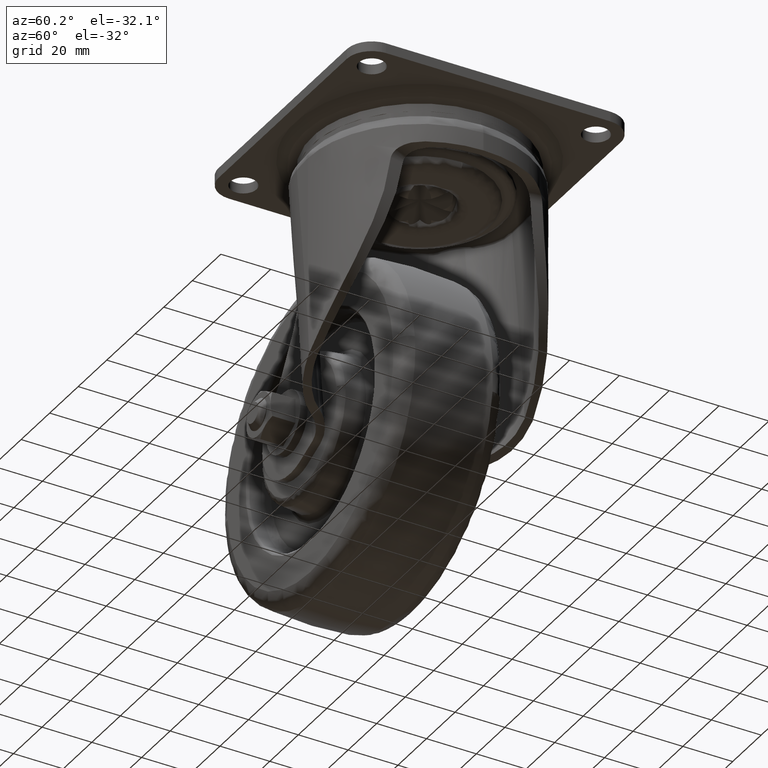
[diagram: clean part render]
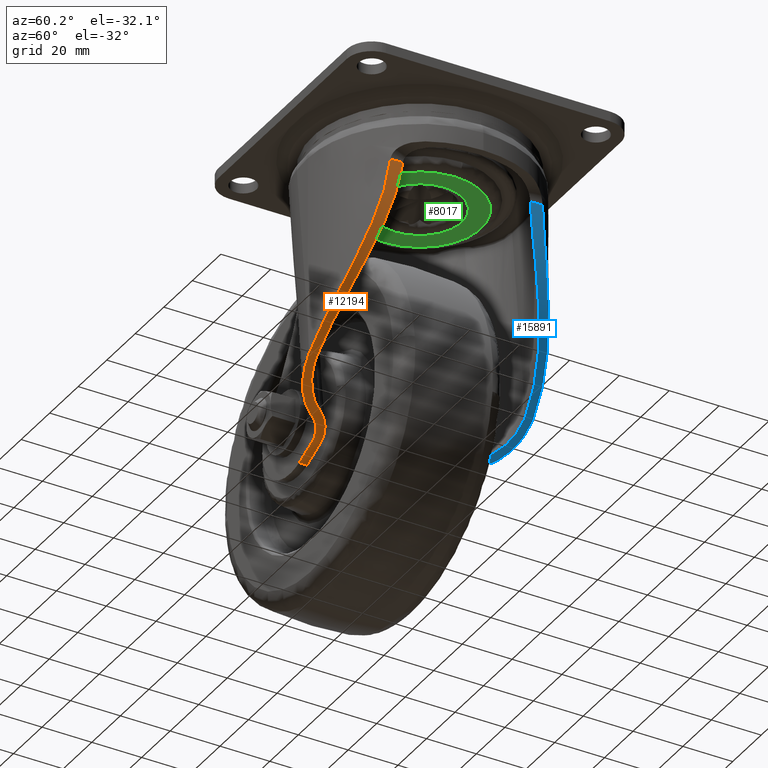
[diagram: same view with three faces highlighted in distinct colors, each labeled with its STEP entity id]
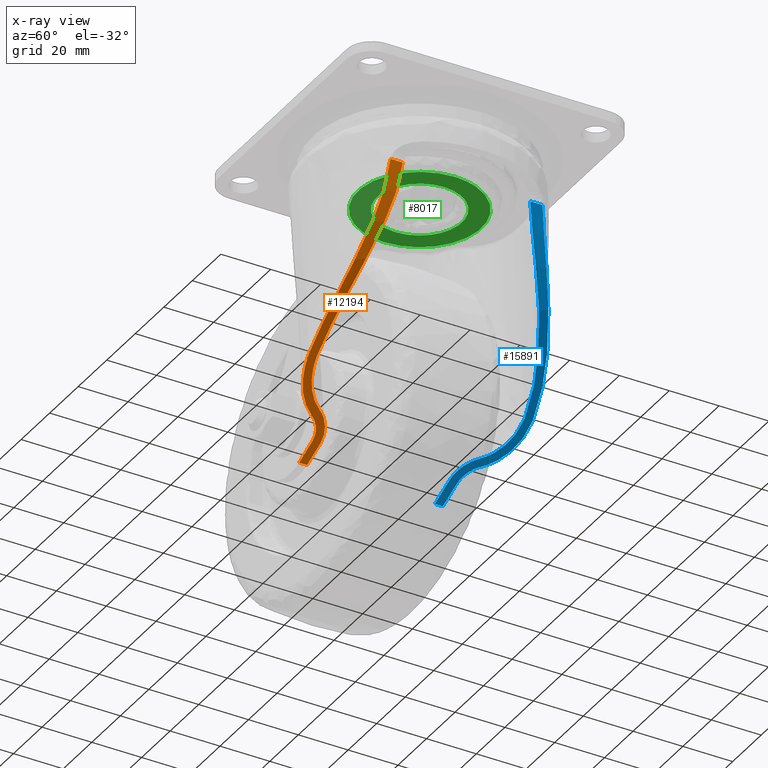
[diagram: x-ray of the same camera — body ghosted, the three highlighted faces saturated]
A machine part, auxiliary view with three faces highlighted in distinct colors.
The next image is the same camera in x-ray (body ghosted, the three faces saturated) — at least one of them is partly hidden behind the body in this view.
Their STEP definitions:

[orange] entity #12194 — the highlighted face is a freeform B-spline surface patch.
#11175=CARTESIAN_POINT('',(-13.958340382854940,-32.171004480450847,-109.168453778326590));
#11176=VERTEX_POINT('',#11175);
#11182=CARTESIAN_POINT('',(-24.742344826114749,-25.649999999999999,-115.044881371074000));
#11183=VERTEX_POINT('',#11182);
#11184=CARTESIAN_POINT('',(-24.742344826114749,-25.649999999999999,-115.044881371074000));
#11185=CARTESIAN_POINT('',(-24.190412240721589,-25.650000000000020,-114.786590730680300));
#11186=CARTESIAN_POINT('',(-23.646766445579999,-25.687769128571439,-114.526052733897900));
#11187=CARTESIAN_POINT('',(-22.575111066813680,-25.834718690428360,-114.000791604115610));
#11188=CARTESIAN_POINT('',(-22.047104710375500,-25.943914283693200,-113.736067767809300));
#11189=CARTESIAN_POINT('',(-21.266579206367851,-26.161065951219570,-113.336254944710900));
#11190=CARTESIAN_POINT('',(-21.008322437452001,-26.242371084852671,-113.202531413340400));
#11191=CARTESIAN_POINT('',(-20.623824274207589,-26.377947470953071,-113.001338588919300));
#11192=CARTESIAN_POINT('',(-20.496139670660479,-26.425411282841061,-112.934173210368800));
#11193=CARTESIAN_POINT('',(-20.241738516300771,-26.524945838127529,-112.799654119423000));
#11194=CARTESIAN_POINT('',(-20.115528163561478,-26.576821492426671,-112.732567702895810));
#11195=CARTESIAN_POINT('',(-19.490464081943120,-26.846159112786101,-112.398630314858200));
#11196=CARTESIAN_POINT('',(-19.008328626311489,-27.093819314078459,-112.135612121565400));
#11197=CARTESIAN_POINT('',(-18.078438173788641,-27.652253579920892,-111.619015901189900));
#11198=CARTESIAN_POINT('',(-17.630683312090309,-27.963022681637870,-111.365432038138490));
#11199=CARTESIAN_POINT('',(-16.985050869415488,-28.478194305400130,-110.993647807955700));
#11200=CARTESIAN_POINT('',(-16.774186723531130,-28.658115379464121,-110.871158721660810));
#11201=CARTESIAN_POINT('',(-16.464570320891230,-28.940783446115741,-110.689849803018400));
#11202=CARTESIAN_POINT('',(-16.362790327085840,-29.036862409189649,-110.629999976792310));
#11203=CARTESIAN_POINT('',(-16.162726254315579,-29.232090968837820,-110.511894677903700));
#11204=CARTESIAN_POINT('',(-16.064335877356331,-29.331337166614318,-110.453576985428300));
#11205=CARTESIAN_POINT('',(-15.580524403726660,-29.835706046411470,-110.165729477090590));
#11206=CARTESIAN_POINT('',(-15.219411274250410,-30.265126605999210,-109.947365063961900));
#11207=CARTESIAN_POINT('',(-14.549136764684921,-31.177106784100388,-109.537048855995490));
#11208=CARTESIAN_POINT('',(-14.239955605257389,-31.659642282395669,-109.345078803464200));
#11209=CARTESIAN_POINT('',(-13.958340382854940,-32.171004480450847,-109.168453778326390));
#11210=B_SPLINE_CURVE_WITH_KNOTS('',3,(#11184,#11185,#11186,#11187,#11188,#11189,#11190,#11191,#11192,#11193,#11194,#11195,#11196,#11197,#11198,#11199,#11200,#11201,#11202,#11203,#11204,#11205,#11206,#11207,#11208,#11209),.UNSPECIFIED.,.F.,.U.,(4,2,2,2,2,2,2,2,2,2,2,2,4),(0.0,0.124999999999999,0.249999999999998,0.312499999999998,0.343749999999998,0.374999999999998,0.499999999999998,0.624999999999999,0.687499999999998,0.718749999999998,0.749999999999999,0.874999999999999,1.0),.UNSPECIFIED.);
#11211=EDGE_CURVE('',#11183,#11176,#11210,.T.);
#11263=CARTESIAN_POINT('',(-16.555370508401651,-33.790154909432403,-110.743020481817990));
#11264=VERTEX_POINT('',#11263);
#11307=CARTESIAN_POINT('',(-24.742344826114749,-28.850000000000001,-115.044881371074000));
#11308=VERTEX_POINT('',#11307);
#11314=CARTESIAN_POINT('',(-16.555370508401651,-33.790154909432452,-110.743020481817990));
#11315=CARTESIAN_POINT('',(-16.769664878360292,-33.402765666140027,-110.868550805787810));
#11316=CARTESIAN_POINT('',(-17.004892964973621,-33.037217168680073,-111.005278741320590));
#11317=CARTESIAN_POINT('',(-17.514615514302449,-32.346448813328692,-111.298335834360900));
#11318=CARTESIAN_POINT('',(-17.789125456362399,-32.021246896747293,-111.454677203337500));
#11319=CARTESIAN_POINT('',(-18.230162605686601,-31.563022158811521,-111.702734893314600));
#11320=CARTESIAN_POINT('',(-18.382070317384962,-31.415227384619129,-111.787686789041200));
#11321=CARTESIAN_POINT('',(-18.617400889806341,-31.201022237690768,-111.918439109802900));
#11322=CARTESIAN_POINT('',(-18.697171367747320,-31.130808121779680,-111.962622050192710));
#11323=CARTESIAN_POINT('',(-18.858113546496892,-30.993828681021139,-112.051471481861600));
#11324=CARTESIAN_POINT('',(-18.939407875356292,-30.926946815664010,-112.096206397219010));
#11325=CARTESIAN_POINT('',(-19.349943209399971,-30.600430728442198,-112.321362100018700));
#11326=CARTESIAN_POINT('',(-19.691322621272569,-30.364366360636030,-112.506198347279000));
#11327=CARTESIAN_POINT('',(-20.399521988480849,-29.940647988507671,-112.883985871929000));
#11328=CARTESIAN_POINT('',(-20.766343081219290,-29.752999157169580,-113.076940977618090));
#11329=CARTESIAN_POINT('',(-21.241290745418450,-29.549178599159621,-113.322788575655490));
#11330=CARTESIAN_POINT('',(-21.337219830247399,-29.509913464927799,-113.372251367749000));
#11331=CARTESIAN_POINT('',(-21.530223824551008,-29.434712834917981,-113.471368862896600));
#11332=CARTESIAN_POINT('',(-21.627069836931589,-29.398861580090990,-113.520906506277000));
#11333=CARTESIAN_POINT('',(-21.918632063344230,-29.296478561380550,-113.669442424470010));
#11334=CARTESIAN_POINT('',(-22.114371597359661,-29.235111818855081,-113.768363233605600));
#11335=CARTESIAN_POINT('',(-22.705654372592122,-29.071283908387390,-114.064724397798000));
#11336=CARTESIAN_POINT('',(-23.105248671469880,-28.989010942150291,-114.261757519374100));
#11337=CARTESIAN_POINT('',(-23.915413914358460,-28.878374016354410,-114.654412367346100));
#11338=CARTESIAN_POINT('',(-24.325982807331179,-28.850000000000019,-114.850034363824700));
#11339=CARTESIAN_POINT('',(-24.742344826114749,-28.850000000000001,-115.044881371074000));
#11340=B_SPLINE_CURVE_WITH_KNOTS('',3,(#11314,#11315,#11316,#11317,#11318,#11319,#11320,#11321,#11322,#11323,#11324,#11325,#11326,#11327,#11328,#11329,#11330,#11331,#11332,#11333,#11334,#11335,#11336,#11337,#11338,#11339),.UNSPECIFIED.,.F.,.U.,(4,2,2,2,2,2,2,2,2,2,2,2,4),(0.0,0.124999999999998,0.249999999999995,0.312499999999992,0.343749999999991,0.374999999999991,0.499999999999992,0.624999999999994,0.656249999999994,0.687499999999994,0.749999999999995,0.874999999999997,1.0),.UNSPECIFIED.);
#11341=EDGE_CURVE('',#11264,#11308,#11340,.T.);
#11471=CARTESIAN_POINT('',(-34.147421906112200,-25.649999999999999,-118.878716382554000));
#11472=VERTEX_POINT('',#11471);
#11473=CARTESIAN_POINT('',(-34.147421906112207,-25.649999999999999,-118.878716382554100));
#11474=CARTESIAN_POINT('',(-29.347746057616998,-25.650000000000002,-117.200093918467940));
#11475=CARTESIAN_POINT('',(-24.742344826114788,-25.649999999999999,-115.044881371074000));
#11483=(BOUNDED_CURVE()B_SPLINE_CURVE(2,(#11473,#11474,#11475),.UNSPECIFIED.,.F.,.U.)CURVE()GEOMETRIC_REPRESENTATION_ITEM()QUASI_UNIFORM_CURVE()RATIONAL_B_SPLINE_CURVE((1.0,0.998718555274707,1.0))REPRESENTATION_ITEM(''));
#11484=EDGE_CURVE('',#11472,#11183,#11483,.T.);
#11546=CARTESIAN_POINT('',(0.845914479159019,-41.657677141153300,-97.839411577003304));
#11547=VERTEX_POINT('',#11546);
#11555=CARTESIAN_POINT('',(-13.958340382854900,-32.171004480450833,-109.168453778326590));
#11556=CARTESIAN_POINT('',(-13.538455538712480,-32.933439248710208,-108.905108031179400));
#11557=CARTESIAN_POINT('',(-13.076551945408040,-33.653058654485712,-108.611103309050090));
#11558=CARTESIAN_POINT('',(-12.326004040973130,-34.671505252380008,-108.123099788138500));
#11559=CARTESIAN_POINT('',(-12.066170466217260,-35.000786715009568,-107.952571526151700));
#11560=CARTESIAN_POINT('',(-11.662330259706730,-35.479512457739837,-107.684625090248800));
#11561=CARTESIAN_POINT('',(-11.525366804267851,-35.636553041504442,-107.593282344864090));
#11562=CARTESIAN_POINT('',(-11.246784089503359,-35.945559756135957,-107.406462468506600));
#11563=CARTESIAN_POINT('',(-11.104899536802630,-36.097794461251567,-107.310804726476310));
#11564=CARTESIAN_POINT('',(-10.388060805879380,-36.841997468377052,-106.824765415541900));
#11565=CARTESIAN_POINT('',(-9.790596746264122,-37.384077698092838,-106.410991842285600));
#11566=CARTESIAN_POINT('',(-8.554692273061338,-38.370338582911849,-105.533268781388400));
#11567=CARTESIAN_POINT('',(-7.916219759668644,-38.814468057303543,-105.069307999467500));
#11568=CARTESIAN_POINT('',(-7.095359949090536,-39.310898040378547,-104.456718859820800));
#11569=CARTESIAN_POINT('',(-6.930034225605237,-39.407243868919323,-104.332557238551200));
#11570=CARTESIAN_POINT('',(-6.597193340052033,-39.594045703032990,-104.080947627718800));
#11571=CARTESIAN_POINT('',(-6.430424548589754,-39.684083711346972,-103.954063853428490));
#11572=CARTESIAN_POINT('',(-5.929171200663275,-39.944400408740577,-103.570185306738590));
#11573=CARTESIAN_POINT('',(-5.593742114122522,-40.104891746331681,-103.309964770459200));
#11574=CARTESIAN_POINT('',(-4.584360198651030,-40.549138984028389,-102.516419070070800));
#11575=CARTESIAN_POINT('',(-3.907340362360289,-40.795787284040060,-101.970229157868200));
#11576=CARTESIAN_POINT('',(-2.887793441156524,-41.096663369634037,-101.124898395888490));
#11577=CARTESIAN_POINT('',(-2.547267422139728,-41.185407476660963,-100.838775476912600));
#11578=CARTESIAN_POINT('',(-2.035670614072601,-41.301591444511622,-100.402990440010300));
#11579=CARTESIAN_POINT('',(-1.865003355602412,-41.337495762642092,-100.256628359263500));
#11580=CARTESIAN_POINT('',(-1.523429426363066,-41.403702971156321,-99.961686262159049));
#11581=CARTESIAN_POINT('',(-1.352542578262424,-41.433995735288732,-99.813121066081479));
#11582=CARTESIAN_POINT('',(-0.500558603821902,-41.571130104942441,-99.067334232778506));
#11583=CARTESIAN_POINT('',(0.175581846327371,-41.635612298171353,-98.459171806147381));
#11584=CARTESIAN_POINT('',(0.845914479159009,-41.657677141153300,-97.839411577003304));
#11585=B_SPLINE_CURVE_WITH_KNOTS('',3,(#11555,#11556,#11557,#11558,#11559,#11560,#11561,#11562,#11563,#11564,#11565,#11566,#11567,#11568,#11569,#11570,#11571,#11572,#11573,#11574,#11575,#11576,#11577,#11578,#11579,#11580,#11581,#11582,#11583,#11584),.UNSPECIFIED.,.F.,.U.,(4,2,2,2,2,2,2,2,2,2,2,2,2,2,4),(0.0,0.124999999999999,0.187499999999998,0.218749999999997,0.249999999999997,0.374999999999995,0.499999999999992,0.531249999999992,0.562499999999992,0.624999999999993,0.749999999999994,0.812499999999995,0.843749999999996,0.874999999999997,1.0),.UNSPECIFIED.);
#11586=EDGE_CURVE('',#11176,#11547,#11585,.T.);
#11824=CARTESIAN_POINT('',(-34.147422048417553,-28.850000000000001,-118.878715984891600));
#11825=VERTEX_POINT('',#11824);
#11826=CARTESIAN_POINT('',(-34.147422048417553,-28.850000000000001,-118.878715984891600));
#11827=CARTESIAN_POINT('',(-29.347746059000482,-28.849999999999998,-117.200093919115430));
#11828=CARTESIAN_POINT('',(-24.742344826114788,-28.850000000000001,-115.044881371074000));
#11836=(BOUNDED_CURVE()B_SPLINE_CURVE(2,(#11826,#11827,#11828),.UNSPECIFIED.,.F.,.U.)CURVE()GEOMETRIC_REPRESENTATION_ITEM()QUASI_UNIFORM_CURVE()RATIONAL_B_SPLINE_CURVE((1.0,0.998718555273939,1.0))REPRESENTATION_ITEM(''));
#11837=EDGE_CURVE('',#11825,#11308,#11836,.T.);
#11901=CARTESIAN_POINT('',(0.665113919410144,-44.852925147740912,-98.006161333690002));
#11902=VERTEX_POINT('',#11901);
#11903=CARTESIAN_POINT('',(-16.555370508401609,-33.790154909432417,-110.743020481818210));
#11904=CARTESIAN_POINT('',(-16.494135386442739,-33.900852299957158,-110.707149895487310));
#11905=CARTESIAN_POINT('',(-16.431986925300180,-34.011040126397077,-110.670657060400400));
#11906=CARTESIAN_POINT('',(-16.305860730061202,-34.230391459634653,-110.596408793848790));
#11907=CARTESIAN_POINT('',(-16.241829670196861,-34.339641374167769,-110.558621673516400));
#11908=CARTESIAN_POINT('',(-16.047716581799939,-34.664640472666271,-110.443769826329100));
#11909=CARTESIAN_POINT('',(-15.915443633010080,-34.877952166118853,-110.365114611153500));
#11910=CARTESIAN_POINT('',(-15.510300837966460,-35.508036318598663,-110.122878679467210));
#11911=CARTESIAN_POINT('',(-15.229116515364810,-35.914968961181039,-109.953034615900290));
#11912=CARTESIAN_POINT('',(-14.354065419014439,-37.097653792997541,-109.418108880659500));
#11913=CARTESIAN_POINT('',(-13.728812929742769,-37.835433548098479,-109.027733533116300));
#11914=CARTESIAN_POINT('',(-12.898774185897709,-38.696082861884399,-108.494865788178600));
#11915=CARTESIAN_POINT('',(-12.646113462930170,-38.949642547993570,-108.331626139826400));
#11916=CARTESIAN_POINT('',(-12.388049423885260,-39.196249978951322,-108.163205529254900));
#11917=CARTESIAN_POINT('',(-12.214812335721330,-39.359108077818483,-108.049759825454000));
#11918=CARTESIAN_POINT('',(-12.127519060482779,-39.439833788793152,-107.992403140746210));
#11919=CARTESIAN_POINT('',(-11.689153904611921,-39.838619849518523,-107.703378373338790));
#11920=CARTESIAN_POINT('',(-11.332766151103529,-40.141878456105168,-107.465243124628300));
#11921=CARTESIAN_POINT('',(-10.248120643473429,-41.006644238945007,-106.730003823687100));
#11922=CARTESIAN_POINT('',(-9.504448941202739,-41.523292730781002,-106.212113268209390));
#11923=CARTESIAN_POINT('',(-8.362949179268593,-42.214359437170117,-105.392375452136700));
#11924=CARTESIAN_POINT('',(-7.978098472828878,-42.430689811205987,-105.111966927213100));
#11925=CARTESIAN_POINT('',(-7.394761034262115,-42.734557905060562,-104.680341654865400));
#11926=CARTESIAN_POINT('',(-7.199304120944982,-42.832407314502291,-104.534630441236400));
#11927=CARTESIAN_POINT('',(-6.806435780128067,-43.021271032859630,-104.239482453045300));
#11928=CARTESIAN_POINT('',(-6.608909039083134,-43.112324197405513,-104.089954025978000));
#11929=CARTESIAN_POINT('',(-5.622403889904820,-43.548108697653788,-103.337358187613700));
#11930=CARTESIAN_POINT('',(-4.832334830477436,-43.836879189601063,-102.716086467304000));
#11931=CARTESIAN_POINT('',(-3.253745941921317,-44.306052111653273,-101.434997101658990));
#11932=CARTESIAN_POINT('',(-2.465214474335054,-44.486404591312002,-100.775176734876500));
#11933=CARTESIAN_POINT('',(-1.482032966165947,-44.648262262335358,-99.925868203476654));
#11934=CARTESIAN_POINT('',(-1.285519202070559,-44.677445183562931,-99.754778594622977));
#11935=CARTESIAN_POINT('',(-0.892768997299292,-44.729502765129553,-99.410127622260418));
#11936=CARTESIAN_POINT('',(-0.696441833293332,-44.752386433054653,-99.236485334195294));
#11937=CARTESIAN_POINT('',(-0.108498576516600,-44.811601021745837,-98.712338545729324));
#11938=CARTESIAN_POINT('',(0.280006427664637,-44.838309675903012,-98.360467972666484));
#11939=CARTESIAN_POINT('',(0.665113919410222,-44.852925147740898,-98.006161333690073));
#11940=B_SPLINE_CURVE_WITH_KNOTS('',3,(#11903,#11904,#11905,#11906,#11907,#11908,#11909,#11910,#11911,#11912,#11913,#11914,#11915,#11916,#11917,#11918,#11919,#11920,#11921,#11922,#11923,#11924,#11925,#11926,#11927,#11928,#11929,#11930,#11931,#11932,#11933,#11934,#11935,#11936,#11937,#11938,#11939),.UNSPECIFIED.,.F.,.U.,(4,2,2,2,2,2,1,2,2,2,2,2,2,2,2,2,2,2,4),(0.0,0.015625000000000,0.031249999999999,0.062499999999999,0.124999999999996,0.249999999999991,0.281249999999990,0.296874999999989,0.312499999999989,0.374999999999989,0.499999999999991,0.562499999999993,0.593749999999993,0.624999999999994,0.749999999999995,0.874999999999997,0.906249999999998,0.937499999999998,1.0),.UNSPECIFIED.);
#11941=EDGE_CURVE('',#11264,#11902,#11940,.T.);
#12056=CARTESIAN_POINT('',(-34.147421906112200,-25.649999999999999,-118.878716382554000));
#12057=CARTESIAN_POINT('',(-34.147422048417553,-28.850000000000001,-118.878715984891600));
#12058=QUASI_UNIFORM_CURVE('',1,(#12056,#12057),.UNSPECIFIED.,.F.,.U.);
#12059=EDGE_CURVE('',#11472,#11825,#12058,.T.);
#12065=CARTESIAN_POINT('',(32.983816930359147,-25.087429469579298,-28.304949847111718));
#12066=CARTESIAN_POINT('',(32.983816930359147,-45.350986497645607,-28.304949847111718));
#12067=CARTESIAN_POINT('',(30.028270093548290,-25.087429469579302,-99.817818991695958));
#12068=CARTESIAN_POINT('',(30.028270093548290,-45.350986497645607,-99.817818991695958));
#12069=CARTESIAN_POINT('',(-38.550708006131551,-25.087429469579298,-120.305607383775890));
#12070=CARTESIAN_POINT('',(-38.550708006131551,-45.350986497645607,-120.305607383775890));
#12078=(BOUNDED_SURFACE()B_SPLINE_SURFACE(1,2,((#12065,#12067,#12069),(#12066,#12068,#12070)),.UNSPECIFIED.,.F.,.F.,.U.)B_SPLINE_SURFACE_WITH_KNOTS((2,2),(3,3),(0.0,20.263557028066309),(0.0,128.480103075016810),.UNSPECIFIED.)GEOMETRIC_REPRESENTATION_ITEM()RATIONAL_B_SPLINE_SURFACE(((1.0,0.814115518356319,1.0),(1.0,0.814115518356319,1.0)))REPRESENTATION_ITEM('')SURFACE());
#12079=CARTESIAN_POINT('',(32.840996432676263,-30.514174671686899,-30.927961300702901));
#12080=VERTEX_POINT('',#12079);
#12081=CARTESIAN_POINT('',(0.983958270327116,-44.855470106970003,-97.711542046221595));
#12082=VERTEX_POINT('',#12081);
#12083=CARTESIAN_POINT('',(32.840996432676263,-30.514174671686899,-30.927961300702901));
#12084=CARTESIAN_POINT('',(32.731630099860837,-30.632330894282081,-32.546094941064631));
#12085=CARTESIAN_POINT('',(32.583944755285472,-30.790717479955401,-34.148724662803332));
#12086=CARTESIAN_POINT('',(32.215005379383093,-31.177960667727639,-37.325495495106431));
#12087=CARTESIAN_POINT('',(31.993748986579259,-31.406789397317429,-38.899641378470413));
#12088=CARTESIAN_POINT('',(31.479743140969362,-31.923853526529800,-42.021961037635847));
#12089=CARTESIAN_POINT('',(31.186991467957242,-32.212068984576547,-43.570138118607503));
#12090=CARTESIAN_POINT('',(30.531151511851469,-32.836562791659382,-46.642899830400637));
#12091=CARTESIAN_POINT('',(30.168061559413310,-33.172829663806667,-48.167486282591760));
#12092=CARTESIAN_POINT('',(29.371842230880731,-33.882273405533120,-51.195232966326117));
#12093=CARTESIAN_POINT('',(28.938712087202831,-34.255446139718060,-52.698393819863433));
#12094=CARTESIAN_POINT('',(28.236094140373918,-34.834837926547017,-54.938503494586953));
#12095=CARTESIAN_POINT('',(27.993061357243821,-35.031244232121779,-55.682766129840083));
#12096=CARTESIAN_POINT('',(27.489200453036879,-35.429309848749867,-57.166626006647171));
#12097=CARTESIAN_POINT('',(27.228122795627090,-35.631150784907263,-57.906866906281500));
#12098=CARTESIAN_POINT('',(26.421143775048328,-36.240241938700727,-60.112275977825377));
#12099=CARTESIAN_POINT('',(25.850857053407641,-36.651589258078467,-61.564310592639139));
#12100=CARTESIAN_POINT('',(24.645915459018759,-37.475007213163657,-64.434776762133907));
#12101=CARTESIAN_POINT('',(24.011259198952249,-37.887089062461428,-65.853204463774858));
#12102=CARTESIAN_POINT('',(22.677053516709631,-38.702881872110282,-68.658725358907759));
#12103=CARTESIAN_POINT('',(21.977504427053599,-39.106604614757117,-70.045815432892368));
#12104=CARTESIAN_POINT('',(20.512251665161958,-39.896974567302557,-72.790438651954332));
#12105=CARTESIAN_POINT('',(19.746550068240872,-40.283634522892449,-74.147969312690009));
#12106=CARTESIAN_POINT('',(18.146958658199338,-41.031197986952129,-76.834843949005005));
#12107=CARTESIAN_POINT('',(17.313072941648080,-41.392116170936283,-78.164185949876256));
#12108=CARTESIAN_POINT('',(16.008930425524440,-41.907378031786152,-80.137830900945744));
#12109=CARTESIAN_POINT('',(15.565323467464230,-42.074775066961450,-80.792315392128756));
#12110=CARTESIAN_POINT('',(14.886231415557461,-42.318426992784453,-81.769022469503781));
#12111=CARTESIAN_POINT('',(14.657485590724010,-42.398437439893463,-82.093896067101610));
#12112=CARTESIAN_POINT('',(14.195833179177390,-42.555660824809500,-82.741330960112165));
#12113=CARTESIAN_POINT('',(13.963123596707600,-42.632808526186679,-83.063619772614160));
#12114=CARTESIAN_POINT('',(12.790142660555251,-43.010890080827330,-84.667958762606901));
#12115=CARTESIAN_POINT('',(11.821594995001030,-43.288879795848210,-85.928709586177362));
#12116=CARTESIAN_POINT('',(9.823401096722959,-43.786914083052018,-88.405486636485804));
#12117=CARTESIAN_POINT('',(8.793756992630948,-44.006976581236110,-89.621511953282095));
#12118=CARTESIAN_POINT('',(6.671987161986849,-44.379221637924047,-92.009163520049910));
#12119=CARTESIAN_POINT('',(5.579865153196719,-44.531427703655588,-93.180789391207938));
#12120=CARTESIAN_POINT('',(3.331058320823689,-44.756444596235283,-95.479599050963813));
#12121=CARTESIAN_POINT('',(2.174379509276349,-44.829288920943434,-96.606782927658045));
#12122=CARTESIAN_POINT('',(0.983958270327203,-44.855470106969982,-97.711542046221666));
#12123=B_SPLINE_CURVE_WITH_KNOTS('',3,(#12083,#12084,#12085,#12086,#12087,#12088,#12089,#12090,#12091,#12092,#12093,#12094,#12095,#12096,#12097,#12098,#12099,#12100,#12101,#12102,#12103,#12104,#12105,#12106,#12107,#12108,#12109,#12110,#12111,#12112,#12113,#12114,#12115,#12116,#12117,#12118,#12119,#12120,#12121,#12122),.UNSPECIFIED.,.F.,.U.,(4,2,2,2,2,2,2,2,2,2,2,2,2,2,2,2,2,2,2,4),(0.0,0.062500000000000,0.124999999999999,0.187499999999999,0.249999999999998,0.312499999999998,0.343749999999998,0.374999999999997,0.437499999999997,0.499999999999997,0.562499999999997,0.624999999999997,0.687499999999997,0.718749999999997,0.734374999999997,0.749999999999997,0.812499999999998,0.874999999999998,0.937499999999999,1.0),.UNSPECIFIED.);
#12124=EDGE_CURVE('',#12080,#12082,#12123,.T.);
#12125=ORIENTED_EDGE('',*,*,#12124,.T.);
#12126=CARTESIAN_POINT('',(0.983958270327116,-44.855470106970003,-97.711542046221595));
#12127=CARTESIAN_POINT('',(0.877875589457809,-44.857803205801879,-97.809991070128035));
#12128=CARTESIAN_POINT('',(0.771594035383537,-44.856966245797047,-97.908197485110080));
#12129=CARTESIAN_POINT('',(0.665113919410133,-44.852925147740912,-98.006161333690002));
#12130=QUASI_UNIFORM_CURVE('',3,(#12126,#12127,#12128,#12129),.UNSPECIFIED.,.F.,.U.);
#12131=EDGE_CURVE('',#12082,#11902,#12130,.T.);
#12132=ORIENTED_EDGE('',*,*,#12131,.T.);
#12133=ORIENTED_EDGE('',*,*,#11941,.F.);
#12134=ORIENTED_EDGE('',*,*,#11341,.T.);
#12135=ORIENTED_EDGE('',*,*,#11837,.F.);
#12136=ORIENTED_EDGE('',*,*,#12059,.F.);
#12137=ORIENTED_EDGE('',*,*,#11484,.T.);
#12138=ORIENTED_EDGE('',*,*,#11211,.T.);
#12139=ORIENTED_EDGE('',*,*,#11586,.T.);
#12140=CARTESIAN_POINT('',(32.840996432676263,-25.569608102013952,-30.927961300702901));
#12141=VERTEX_POINT('',#12140);
#12142=CARTESIAN_POINT('',(32.840996432676263,-25.569608102013952,-30.927961300702901));
#12143=CARTESIAN_POINT('',(32.730810352039583,-25.711775049539231,-32.558223550409387));
#12144=CARTESIAN_POINT('',(32.581892459440382,-25.902154855464278,-34.170484228523812));
#12145=CARTESIAN_POINT('',(32.210190847075353,-26.364988010608489,-37.362786767347679));
#12146=CARTESIAN_POINT('',(31.987403195177571,-26.637391728705150,-38.942838464559649));
#12147=CARTESIAN_POINT('',(31.470310943113539,-27.248970073958301,-42.074462787704768));
#12148=CARTESIAN_POINT('',(31.176002203253571,-27.588114606141261,-43.626041029803339));
#12149=CARTESIAN_POINT('',(30.517098625192759,-28.318257140748049,-46.704153868470591));
#12150=CARTESIAN_POINT('',(30.152500471268660,-28.709242412343212,-48.230690530249937));
#12151=CARTESIAN_POINT('',(29.353246359339241,-29.529163692525771,-51.261739570527858));
#12152=CARTESIAN_POINT('',(28.918588525914391,-29.958099279287321,-52.766251667006507));
#12153=CARTESIAN_POINT('',(28.331046153437729,-30.510043585342711,-54.634739923375101));
#12154=CARTESIAN_POINT('',(28.211324480288312,-30.621223982069900,-55.007828948052442));
#12155=CARTESIAN_POINT('',(27.967435203316281,-30.844980077570028,-55.752826034195898));
#12156=CARTESIAN_POINT('',(27.843194530743041,-30.957620735322060,-56.124946314826047));
#12157=CARTESIAN_POINT('',(27.464401805925359,-31.296796259866849,-57.237743700802547));
#12158=CARTESIAN_POINT('',(27.203825420021118,-31.524549125772740,-57.974770771632997));
#12159=CARTESIAN_POINT('',(26.398090121026730,-32.210541202020842,-60.172067859127623));
#12160=CARTESIAN_POINT('',(25.828949107346471,-32.671474811517207,-61.618578506563189));
#12161=CARTESIAN_POINT('',(24.626820856173619,-33.590076203276503,-64.478114821597117));
#12162=CARTESIAN_POINT('',(23.993832084111592,-34.047760732372652,-65.891134613986708));
#12163=CARTESIAN_POINT('',(22.663373061024132,-34.950471543906403,-68.686176704194622));
#12164=CARTESIAN_POINT('',(21.965903238638429,-35.395513579989732,-70.068194485998148));
#12165=CARTESIAN_POINT('',(20.505112723501441,-36.264109739998652,-72.803154108252485));
#12166=CARTESIAN_POINT('',(19.741794372824330,-36.687679549004912,-74.156092486371463));
#12167=CARTESIAN_POINT('',(18.147161818419629,-37.504596927516822,-76.834367399502241));
#12168=CARTESIAN_POINT('',(17.315852151314221,-37.897961597211221,-78.159701230520753));
#12169=CARTESIAN_POINT('',(15.582214673798070,-38.645344345657087,-80.783885044340153));
#12170=CARTESIAN_POINT('',(14.679894307404640,-38.999383163816312,-82.082732796091477));
#12171=CARTESIAN_POINT('',(13.270093168126690,-39.493377255309511,-84.011767629003472));
#12172=CARTESIAN_POINT('',(12.790763769718000,-39.651855291509129,-84.651571095717358));
#12173=CARTESIAN_POINT('',(12.057202046939681,-39.879235492306613,-85.606526614767404));
#12174=CARTESIAN_POINT('',(11.810147861479839,-39.953335458642997,-85.924186502331168));
#12175=CARTESIAN_POINT('',(11.311557865713610,-40.097766232697509,-86.557344553302414));
#12176=CARTESIAN_POINT('',(11.060345896867490,-40.168005260269872,-86.872434834917001));
#12177=CARTESIAN_POINT('',(9.794672160062760,-40.508943348298978,-88.440468846590051));
#12178=CARTESIAN_POINT('',(8.751393815605614,-40.748925545702669,-89.671175860722045));
#12179=CARTESIAN_POINT('',(6.602222279767157,-41.152964149669948,-92.085571813435138));
#12180=CARTESIAN_POINT('',(5.496332623378132,-41.317047872307363,-93.269260146990476));
#12181=CARTESIAN_POINT('',(3.220112574285071,-41.557127299553663,-95.589655672989451));
#12182=CARTESIAN_POINT('',(2.049788071811749,-41.633162454748451,-96.726362715736855));
#12183=CARTESIAN_POINT('',(0.845914479159040,-41.657677141153300,-97.839411577003290));
#12184=B_SPLINE_CURVE_WITH_KNOTS('',3,(#12142,#12143,#12144,#12145,#12146,#12147,#12148,#12149,#12150,#12151,#12152,#12153,#12154,#12155,#12156,#12157,#12158,#12159,#12160,#12161,#12162,#12163,#12164,#12165,#12166,#12167,#12168,#12169,#12170,#12171,#12172,#12173,#12174,#12175,#12176,#12177,#12178,#12179,#12180,#12181,#12182,#12183),.UNSPECIFIED.,.F.,.U.,(4,2,2,2,2,2,2,2,2,2,2,2,2,2,2,2,2,2,2,2,4),(0.0,0.062500000000000,0.124999999999999,0.187499999999999,0.249999999999998,0.312499999999998,0.328124999999998,0.343749999999998,0.374999999999998,0.437499999999998,0.499999999999998,0.562499999999998,0.624999999999998,0.687499999999998,0.749999999999998,0.781249999999998,0.796874999999999,0.812499999999999,0.874999999999999,0.937499999999999,1.0),.UNSPECIFIED.);
#12185=EDGE_CURVE('',#12141,#11547,#12184,.T.);
#12186=ORIENTED_EDGE('',*,*,#12185,.F.);
#12187=CARTESIAN_POINT('',(32.840996432676263,-25.569608102013952,-30.927961300702901));
#12188=CARTESIAN_POINT('',(32.840996432676263,-30.514174671686899,-30.927961300702901));
#12189=QUASI_UNIFORM_CURVE('',1,(#12187,#12188),.UNSPECIFIED.,.F.,.U.);
#12190=EDGE_CURVE('',#12141,#12080,#12189,.T.);
#12191=ORIENTED_EDGE('',*,*,#12190,.T.);
#12192=EDGE_LOOP('',(#12125,#12132,#12133,#12134,#12135,#12136,#12137,#12138,#12139,#12186,#12191));
#12193=FACE_OUTER_BOUND('',#12192,.T.);
#12194=ADVANCED_FACE('',(#12193),#12078,.T.);

[blue] entity #15891 — the highlighted face is a freeform B-spline surface patch.
#12217=CARTESIAN_POINT('',(0.665113919409364,44.852925147740912,-98.006161333690812));
#12218=VERTEX_POINT('',#12217);
#12226=CARTESIAN_POINT('',(0.983958270326368,44.855470106969953,-97.711542046222306));
#12227=VERTEX_POINT('',#12226);
#12235=CARTESIAN_POINT('',(0.665113919409392,44.852925147740912,-98.006161333690812));
#12236=CARTESIAN_POINT('',(0.771594035382809,44.856966245797068,-97.908197485110875));
#12237=CARTESIAN_POINT('',(0.877875589457049,44.857803205801837,-97.809991070128746));
#12238=CARTESIAN_POINT('',(0.983958270326368,44.855470106969953,-97.711542046222306));
#12239=QUASI_UNIFORM_CURVE('',3,(#12235,#12236,#12237,#12238),.UNSPECIFIED.,.F.,.U.);
#12240=EDGE_CURVE('',#12218,#12227,#12239,.T.);
#14831=CARTESIAN_POINT('',(-13.958340382854940,32.171004480450897,-109.168453778326590));
#14832=VERTEX_POINT('',#14831);
#14868=CARTESIAN_POINT('',(-24.742344826114799,25.649999999999999,-115.044881371074000));
#14869=VERTEX_POINT('',#14868);
#14875=CARTESIAN_POINT('',(-13.958340382854921,32.171004480450847,-109.168453778326590));
#14876=CARTESIAN_POINT('',(-14.239973044269711,31.659610616310260,-109.345089740962610));
#14877=CARTESIAN_POINT('',(-14.548974073648511,31.177405962525050,-109.536945877620100));
#14878=CARTESIAN_POINT('',(-15.218315792652380,30.266539452180719,-109.946697831210300));
#14879=CARTESIAN_POINT('',(-15.578678074256990,29.837904110704390,-110.164612877517200));
#14880=CARTESIAN_POINT('',(-16.157555264442589,29.234021771627852,-110.509047556987500));
#14881=CARTESIAN_POINT('',(-16.356925479584230,29.039262793098779,-110.626797831267890));
#14882=CARTESIAN_POINT('',(-16.665773346095548,28.756994483524810,-110.807680421025000));
#14883=CARTESIAN_POINT('',(-16.770503620290199,28.664433193827939,-110.868769807778700));
#14884=CARTESIAN_POINT('',(-16.981887656315770,28.483789938574830,-110.991546656598300));
#14885=CARTESIAN_POINT('',(-17.088668048915419,28.395583682360542,-111.053308965790710));
#14886=CARTESIAN_POINT('',(-17.627950912562511,27.964932927708670,-111.363883182792190));
#14887=CARTESIAN_POINT('',(-18.076526725119301,27.653482018748178,-111.617944744232300));
#14888=CARTESIAN_POINT('',(-19.007577097994769,27.094190323330800,-112.135203847868300));
#14889=CARTESIAN_POINT('',(-19.490052596676492,26.846356801636379,-112.398407711471290));
#14890=CARTESIAN_POINT('',(-20.240174989927940,26.523101492869309,-112.799161035311100));
#14891=CARTESIAN_POINT('',(-20.495273433014290,26.423283881461899,-112.934071726602000));
#14892=CARTESIAN_POINT('',(-21.008030521626679,26.242465423836371,-113.202379907250700));
#14893=CARTESIAN_POINT('',(-21.266329284853221,26.161140639905941,-113.336126144045390));
#14894=CARTESIAN_POINT('',(-22.046966986600619,25.943942291458601,-113.735998783871910));
#14895=CARTESIAN_POINT('',(-22.575029827013491,25.834731898731491,-114.000751453402400));
#14896=CARTESIAN_POINT('',(-23.646757711610629,25.687768257995842,-114.526048784842900));
#14897=CARTESIAN_POINT('',(-24.190419564457390,25.649999999999999,-114.786594158005300));
#14898=CARTESIAN_POINT('',(-24.742344826114799,25.649999999999999,-115.044881371074000));
#14899=B_SPLINE_CURVE_WITH_KNOTS('',3,(#14875,#14876,#14877,#14878,#14879,#14880,#14881,#14882,#14883,#14884,#14885,#14886,#14887,#14888,#14889,#14890,#14891,#14892,#14893,#14894,#14895,#14896,#14897,#14898),.UNSPECIFIED.,.F.,.U.,(4,2,2,2,2,2,2,2,2,2,2,4),(0.0,0.125000000000002,0.250000000000005,0.312500000000006,0.343750000000006,0.375000000000006,0.500000000000006,0.625000000000006,0.687500000000006,0.750000000000005,0.875000000000003,1.0),.UNSPECIFIED.);
#14900=EDGE_CURVE('',#14832,#14869,#14899,.T.);
#14921=CARTESIAN_POINT('',(-16.555370508401602,33.790154909432452,-110.743020481817990));
#14922=VERTEX_POINT('',#14921);
#14928=CARTESIAN_POINT('',(-24.742344826114799,28.850000000000001,-115.044881371074000));
#14929=VERTEX_POINT('',#14928);
#14930=CARTESIAN_POINT('',(-24.742344826114749,28.850000000000001,-115.044881371074000));
#14931=CARTESIAN_POINT('',(-24.325984519504370,28.850000000000019,-114.850035165078910));
#14932=CARTESIAN_POINT('',(-23.915381143643991,28.878373964905279,-114.654397032385900));
#14933=CARTESIAN_POINT('',(-23.105083721056921,28.989037995686800,-114.261677026639600));
#14934=CARTESIAN_POINT('',(-22.705391672962900,29.071337886767171,-114.064594868866810));
#14935=CARTESIAN_POINT('',(-22.113918833104609,29.235246685265501,-113.768135228400000));
#14936=CARTESIAN_POINT('',(-21.918108679529340,29.296647160340150,-113.669177431366710));
#14937=CARTESIAN_POINT('',(-21.529203694343732,29.433242828538880,-113.471047104637900));
#14938=CARTESIAN_POINT('',(-21.335565233837059,29.508705826960920,-113.371589540719900));
#14939=CARTESIAN_POINT('',(-20.766021795565031,29.753168140492569,-113.076771513832200));
#14940=CARTESIAN_POINT('',(-20.399616081269439,29.940629340272491,-112.884032851029700));
#14941=CARTESIAN_POINT('',(-19.692480636330981,30.363635934593709,-112.506819296898000));
#14942=CARTESIAN_POINT('',(-19.351750348521669,30.599177403512570,-112.322340852681800));
#14943=CARTESIAN_POINT('',(-18.860209866876509,30.989845417829969,-112.052776822156010));
#14944=CARTESIAN_POINT('',(-18.699632274547550,31.126314578715220,-111.964119592724600));
#14945=CARTESIAN_POINT('',(-18.463807980032620,31.340758616431419,-111.833105123654800));
#14946=CARTESIAN_POINT('',(-18.386275806248161,31.413657114064272,-111.789892810626000));
#14947=CARTESIAN_POINT('',(-18.233883612198699,31.561774390014151,-111.704700447295290));
#14948=CARTESIAN_POINT('',(-18.158938640803111,31.637070045338440,-111.662673218911610));
#14949=CARTESIAN_POINT('',(-17.790421420307801,32.019710738863431,-111.455415326161400));
#14950=CARTESIAN_POINT('',(-17.515387272012340,32.345457814699870,-111.298777805238800));
#14951=CARTESIAN_POINT('',(-17.005011641816498,33.037001559416602,-111.005348708979600));
#14952=CARTESIAN_POINT('',(-16.769655918818732,33.402781862692557,-110.868545557427100));
#14953=CARTESIAN_POINT('',(-16.555370508401651,33.790154909432452,-110.743020481817990));
#14954=B_SPLINE_CURVE_WITH_KNOTS('',3,(#14930,#14931,#14932,#14933,#14934,#14935,#14936,#14937,#14938,#14939,#14940,#14941,#14942,#14943,#14944,#14945,#14946,#14947,#14948,#14949,#14950,#14951,#14952,#14953),.UNSPECIFIED.,.F.,.U.,(4,2,2,2,2,2,2,2,2,2,2,4),(0.0,0.124999999999997,0.249999999999995,0.312499999999994,0.374999999999994,0.499999999999995,0.624999999999996,0.687499999999997,0.718749999999998,0.749999999999999,0.875000000000000,1.0),.UNSPECIFIED.);
#14955=EDGE_CURVE('',#14929,#14922,#14954,.T.);
#15124=CARTESIAN_POINT('',(0.845914479158433,41.657677141153300,-97.839411577003901));
#15125=VERTEX_POINT('',#15124);
#15133=CARTESIAN_POINT('',(32.840996432676263,25.569608102013952,-30.927961300702901));
#15134=VERTEX_POINT('',#15133);
#15135=CARTESIAN_POINT('',(0.845914479158482,41.657677141153279,-97.839411577003943));
#15136=CARTESIAN_POINT('',(2.045889697204817,41.633241838025533,-96.729966982367344));
#15137=CARTESIAN_POINT('',(3.210815926947785,41.557667772230680,-95.598610991300049));
#15138=CARTESIAN_POINT('',(5.474063010714812,41.319830687759790,-93.292476479732045));
#15139=CARTESIAN_POINT('',(6.572375742409006,41.157524929879543,-92.117698130778095));
#15140=CARTESIAN_POINT('',(8.704886614447620,40.758682120743408,-89.724776540683891));
#15141=CARTESIAN_POINT('',(9.739079734375403,40.522116156052967,-88.506633829815911));
#15142=CARTESIAN_POINT('',(11.745057138846350,39.985251552875432,-86.026688654949368));
#15143=CARTESIAN_POINT('',(12.716838430158800,39.684931511049783,-84.764887214900938));
#15144=CARTESIAN_POINT('',(14.128481735280840,39.193606478459827,-82.838937629575383));
#15145=CARTESIAN_POINT('',(14.591353103012050,39.023016297745833,-82.191410168780692));
#15146=CARTESIAN_POINT('',(15.274200353129720,38.757729606839938,-81.211710842980011));
#15147=CARTESIAN_POINT('',(15.500020863115870,38.667685734573389,-80.883572117608722));
#15148=CARTESIAN_POINT('',(15.947157268497650,38.484883084189562,-80.225494662768696));
#15149=CARTESIAN_POINT('',(16.168475903149741,38.392126450615692,-79.895557794372593));
#15150=CARTESIAN_POINT('',(17.263954091714560,37.921948871852209,-78.241343549643517));
#15151=CARTESIAN_POINT('',(18.104805815014672,37.525369939577622,-76.903490407353942));
#15152=CARTESIAN_POINT('',(19.718231033118379,36.700639414730936,-74.197603944577409));
#15153=CARTESIAN_POINT('',(20.490800459152290,36.272470137598773,-72.829573650979384));
#15154=CARTESIAN_POINT('',(21.599872394841459,35.613232136057213,-70.753680618568410));
#15155=CARTESIAN_POINT('',(21.961259582631250,35.390654463389943,-70.057738232125772));
#15156=CARTESIAN_POINT('',(22.667591524254640,34.940965248172787,-68.657648425615420));
#15157=CARTESIAN_POINT('',(23.012762457830590,34.713690283891637,-67.952998039513190));
#15158=CARTESIAN_POINT('',(24.020494764308449,34.029088610685150,-65.833401064192188));
#15159=CARTESIAN_POINT('',(24.656258870578899,33.568407539192663,-64.411043671332465));
#15160=CARTESIAN_POINT('',(25.858200601287489,32.648254786235157,-61.545895562836243));
#15161=CARTESIAN_POINT('',(26.424376045317270,32.188768744745623,-60.103108007370238));
#15162=CARTESIAN_POINT('',(27.488777224624119,31.281313194703269,-57.194852048770329));
#15163=CARTESIAN_POINT('',(27.987002934099429,30.833330922543730,-55.729387007214939));
#15164=CARTESIAN_POINT('',(28.916291276807019,29.960167710708031,-52.773024758104363));
#15165=CARTESIAN_POINT('',(29.347355986579881,29.534976880764130,-51.282130761377132));
#15166=CARTESIAN_POINT('',(30.142228019436210,28.720005367863450,-48.271555163146189));
#15167=CARTESIAN_POINT('',(30.506039584057469,28.330220724373529,-46.751875833074941));
#15168=CARTESIAN_POINT('',(31.165335561782001,27.600216189781630,-43.679684151044292));
#15169=CARTESIAN_POINT('',(31.460826373422261,27.260003451084611,-42.127171760669853));
#15170=CARTESIAN_POINT('',(31.981275775552039,26.644817607307441,-38.984539092404532));
#15171=CARTESIAN_POINT('',(32.206242571402278,26.369869516671269,-37.394414583563510));
#15172=CARTESIAN_POINT('',(32.417652594731869,26.106666205545618,-35.581305618786452));
#15173=CARTESIAN_POINT('',(32.440562773222297,26.078062175756230,-35.379512329253330));
#15174=CARTESIAN_POINT('',(32.485214791567003,26.022168630279840,-34.975241065321477));
#15175=CARTESIAN_POINT('',(32.506960543480609,25.994874110915969,-34.772718141624743));
#15176=CARTESIAN_POINT('',(32.570289854039707,25.915190590903901,-34.165509607298802));
#15177=CARTESIAN_POINT('',(32.610016376365678,25.864938617864929,-33.760736726697473));
#15178=CARTESIAN_POINT('',(32.721747101149653,25.723012091603419,-32.546517819891072));
#15179=CARTESIAN_POINT('',(32.786303570245082,25.640175248592961,-31.737171578760162));
#15180=CARTESIAN_POINT('',(32.840996432676320,25.569608102013810,-30.927961300702890));
#15181=B_SPLINE_CURVE_WITH_KNOTS('',3,(#15135,#15136,#15137,#15138,#15139,#15140,#15141,#15142,#15143,#15144,#15145,#15146,#15147,#15148,#15149,#15150,#15151,#15152,#15153,#15154,#15155,#15156,#15157,#15158,#15159,#15160,#15161,#15162,#15163,#15164,#15165,#15166,#15167,#15168,#15169,#15170,#15171,#15172,#15173,#15174,#15175,#15176,#15177,#15178,#15179,#15180),.UNSPECIFIED.,.F.,.U.,(4,2,2,2,2,2,2,2,2,2,2,2,2,2,2,2,2,2,2,2,2,2,4),(0.0,0.062500000000000,0.124999999999999,0.187499999999999,0.249999999999998,0.281249999999998,0.296874999999998,0.312499999999998,0.374999999999998,0.437499999999999,0.468749999999999,0.499999999999999,0.562499999999999,0.624999999999999,0.687499999999999,0.749999999999999,0.812499999999999,0.874999999999999,0.937499999999999,0.945312499999999,0.953124999999999,0.968749999999999,1.0),.UNSPECIFIED.);
#15182=EDGE_CURVE('',#15125,#15134,#15181,.T.);
#15271=CARTESIAN_POINT('',(-34.147421906112200,25.649999999999999,-118.878716382554000));
#15272=VERTEX_POINT('',#15271);
#15273=CARTESIAN_POINT('',(-34.147421906112207,25.649999999999999,-118.878716382554100));
#15274=CARTESIAN_POINT('',(-29.347746057616959,25.649999999999995,-117.200093918467960));
#15275=CARTESIAN_POINT('',(-24.742344826114831,25.649999999999999,-115.044881371074000));
#15283=(BOUNDED_CURVE()B_SPLINE_CURVE(2,(#15273,#15274,#15275),.UNSPECIFIED.,.F.,.U.)CURVE()GEOMETRIC_REPRESENTATION_ITEM()QUASI_UNIFORM_CURVE()RATIONAL_B_SPLINE_CURVE((1.0,0.998718555274707,1.0))REPRESENTATION_ITEM(''));
#15284=EDGE_CURVE('',#15272,#14869,#15283,.T.);
#15350=CARTESIAN_POINT('',(0.845914479158433,41.657677141153300,-97.839411577003901));
#15351=CARTESIAN_POINT('',(0.173421951777601,41.635541202521573,-98.461168750165314));
#15352=CARTESIAN_POINT('',(-0.500589320735332,41.570835583741861,-99.067255025310814));
#15353=CARTESIAN_POINT('',(-1.850329463077137,41.354159247649818,-100.248965420277700));
#15354=CARTESIAN_POINT('',(-2.526062749422768,41.202203570707781,-100.824589178166210));
#15355=CARTESIAN_POINT('',(-3.877441439654994,40.805774501007939,-101.945814238836900));
#15356=CARTESIAN_POINT('',(-4.553095796332153,40.561341905735269,-102.491418164894500));
#15357=CARTESIAN_POINT('',(-5.564646530154137,40.118425254775993,-103.287287901149500));
#15358=CARTESIAN_POINT('',(-5.901502205006271,39.958040902113403,-103.548817926740000));
#15359=CARTESIAN_POINT('',(-6.405989315388645,39.697098176917343,-103.935429428576800));
#15360=CARTESIAN_POINT('',(-6.574250124379794,39.606579823595929,-104.063525244842400));
#15361=CARTESIAN_POINT('',(-6.908063903424998,39.419873601532387,-104.316017526371890));
#15362=CARTESIAN_POINT('',(-7.073860222197898,39.323569506478258,-104.440602816053100));
#15363=CARTESIAN_POINT('',(-7.897151256657707,38.827224360888970,-105.055341362146000));
#15364=CARTESIAN_POINT('',(-8.537650229217819,38.382863809569592,-105.520993038727890));
#15365=CARTESIAN_POINT('',(-9.777709770898712,37.395410417134663,-106.402008271769400));
#15366=CARTESIAN_POINT('',(-10.377303135407210,36.852370375687563,-106.817383499556000));
#15367=CARTESIAN_POINT('',(-11.024862265292880,36.180979813796569,-107.256547176976200));
#15368=CARTESIAN_POINT('',(-11.096436513293281,36.105537245944852,-107.304951107709300));
#15369=CARTESIAN_POINT('',(-11.238813926310669,35.952940663792909,-107.400973055002590));
#15370=CARTESIAN_POINT('',(-11.309639004352540,35.875759337234392,-107.448605467848000));
#15371=CARTESIAN_POINT('',(-11.520060459901289,35.642590681223702,-107.589738886526210));
#15372=CARTESIAN_POINT('',(-11.657894151434251,35.484672462284301,-107.681673060577100));
#15373=CARTESIAN_POINT('',(-12.064014342825310,35.003536102999881,-107.951157974859400));
#15374=CARTESIAN_POINT('',(-12.324927056838190,34.672943686295902,-108.122397973045300));
#15375=CARTESIAN_POINT('',(-13.077601017662349,33.651681010957986,-108.611788536419790));
#15376=CARTESIAN_POINT('',(-13.539435126093620,32.931660495586918,-108.905722414323710));
#15377=CARTESIAN_POINT('',(-13.958340382854869,32.171004480450890,-109.168453778326590));
#15378=B_SPLINE_CURVE_WITH_KNOTS('',3,(#15350,#15351,#15352,#15353,#15354,#15355,#15356,#15357,#15358,#15359,#15360,#15361,#15362,#15363,#15364,#15365,#15366,#15367,#15368,#15369,#15370,#15371,#15372,#15373,#15374,#15375,#15376,#15377),.UNSPECIFIED.,.F.,.U.,(4,2,2,2,2,2,2,2,2,2,2,2,2,4),(0.0,0.124999999999999,0.249999999999999,0.374999999999998,0.437499999999999,0.468749999999999,0.499999999999999,0.624999999999997,0.749999999999996,0.765624999999996,0.781249999999996,0.812499999999996,0.874999999999998,1.0),.UNSPECIFIED.);
#15379=EDGE_CURVE('',#15125,#14832,#15378,.T.);
#15501=CARTESIAN_POINT('',(32.840996432676263,30.514174671686899,-30.927961300702901));
#15502=VERTEX_POINT('',#15501);
#15503=CARTESIAN_POINT('',(0.983958270326450,44.855470106969953,-97.711542046222391));
#15504=CARTESIAN_POINT('',(2.175495375755264,44.829264379455978,-96.605747358376121));
#15505=CARTESIAN_POINT('',(3.332736191701930,44.756322826760197,-95.477943129472862));
#15506=CARTESIAN_POINT('',(5.581806287605265,44.531187279129547,-93.178745742424766));
#15507=CARTESIAN_POINT('',(6.673628919632962,44.378958676935007,-92.007352482634261));
#15508=CARTESIAN_POINT('',(8.794138388609808,44.006884574546518,-89.621046278267727));
#15509=CARTESIAN_POINT('',(9.822821083297704,43.787014967685522,-88.406133684931490));
#15510=CARTESIAN_POINT('',(11.818599219745350,43.289670070541533,-85.932494627243400));
#15511=CARTESIAN_POINT('',(12.785692229161800,43.012176554153243,-84.673769032701216));
#15512=CARTESIAN_POINT('',(14.190829266207670,42.559486493199032,-82.752313497317346));
#15513=CARTESIAN_POINT('',(14.651619812281270,42.402508617819286,-82.106264065229354));
#15514=CARTESIAN_POINT('',(15.331468163448550,42.158726395156847,-81.128751162952256));
#15515=CARTESIAN_POINT('',(15.556340056753839,42.076023536957543,-80.801289730413544));
#15516=CARTESIAN_POINT('',(16.001353061538200,41.908342533815649,-80.144953844230500));
#15517=CARTESIAN_POINT('',(16.221532310401319,41.823353980861647,-79.816031120346395));
#15518=CARTESIAN_POINT('',(17.310953581735841,41.393055626449133,-78.167611920022992));
#15519=CARTESIAN_POINT('',(18.145811363166889,41.031709158805491,-76.836709130895613));
#15520=CARTESIAN_POINT('',(19.745617780236561,40.284095204422322,-74.149597179168268));
#15521=CARTESIAN_POINT('',(20.510561188986159,39.897812437820662,-72.793389817839227));
#15522=CARTESIAN_POINT('',(21.973033726778262,39.109089824804649,-70.054404106327524));
#15523=CARTESIAN_POINT('',(22.670559895534829,38.706637171035112,-68.671627919691062));
#15524=CARTESIAN_POINT('',(23.999874997060839,37.894262186292032,-65.877884713887624));
#15525=CARTESIAN_POINT('',(24.631662810944000,37.484328459481247,-64.466920316968285));
#15526=CARTESIAN_POINT('',(25.830420245403459,36.665961718414877,-61.614754173186753));
#15527=CARTESIAN_POINT('',(26.397390442326611,36.257518292714103,-60.173555557599407));
#15528=CARTESIAN_POINT('',(27.466681465808591,35.451711541820252,-57.258361620643853));
#15529=CARTESIAN_POINT('',(27.969004624642210,35.054338995270413,-55.784369910880173));
#15530=CARTESIAN_POINT('',(28.673533873592358,34.474453524480481,-53.546404648608252));
#15531=CARTESIAN_POINT('',(28.900211285028352,34.283861872794972,-52.795914801714702));
#15532=CARTESIAN_POINT('',(29.227858334931021,34.003092983814447,-51.663079703984138));
#15533=CARTESIAN_POINT('',(29.335012058812019,33.910357037150312,-51.284284249596809));
#15534=CARTESIAN_POINT('',(29.545169909276940,33.726776976554980,-50.524263234921847));
#15535=CARTESIAN_POINT('',(29.648231891748640,33.635881003527153,-50.142814230597693));
#15536=CARTESIAN_POINT('',(30.152168924214809,33.187431214969912,-48.232876764903772));
#15537=CARTESIAN_POINT('',(30.519156061348919,32.847807140590326,-46.695798860819281));
#15538=CARTESIAN_POINT('',(31.180962288662801,32.217982993273182,-43.601599820026372));
#15539=CARTESIAN_POINT('',(31.475782037134721,31.927795742370801,-42.044476707878552));
#15540=CARTESIAN_POINT('',(31.992582018130712,31.408005346060250,-38.908260823075807));
#15541=CARTESIAN_POINT('',(32.214563362416008,31.178423180247840,-37.329164823944403));
#15542=CARTESIAN_POINT('',(32.584158933972986,30.790494108338571,-34.147017062560337));
#15543=CARTESIAN_POINT('',(32.731774331043432,30.632175071084170,-32.543960963243897));
#15544=CARTESIAN_POINT('',(32.840996432676263,30.514174671686849,-30.927961300702950));
#15545=B_SPLINE_CURVE_WITH_KNOTS('',3,(#15503,#15504,#15505,#15506,#15507,#15508,#15509,#15510,#15511,#15512,#15513,#15514,#15515,#15516,#15517,#15518,#15519,#15520,#15521,#15522,#15523,#15524,#15525,#15526,#15527,#15528,#15529,#15530,#15531,#15532,#15533,#15534,#15535,#15536,#15537,#15538,#15539,#15540,#15541,#15542,#15543,#15544),.UNSPECIFIED.,.F.,.U.,(4,2,2,2,2,2,2,2,2,2,2,2,2,2,2,2,2,2,2,2,4),(0.0,0.062500000000001,0.125000000000001,0.187500000000002,0.250000000000002,0.281250000000002,0.296875000000002,0.312500000000002,0.375000000000002,0.437500000000002,0.500000000000002,0.562500000000002,0.625000000000002,0.687500000000002,0.718750000000002,0.734375000000002,0.750000000000002,0.812500000000001,0.875000000000001,0.937500000000000,1.0),.UNSPECIFIED.);
#15546=EDGE_CURVE('',#12227,#15502,#15545,.T.);
#15657=CARTESIAN_POINT('',(-34.147422048417553,28.850000000000001,-118.878715984891600));
#15658=VERTEX_POINT('',#15657);
#15659=CARTESIAN_POINT('',(-34.147422048417553,28.850000000000001,-118.878715984891600));
#15660=CARTESIAN_POINT('',(-29.347746059000432,28.849999999999998,-117.200093919115390));
#15661=CARTESIAN_POINT('',(-24.742344826114831,28.850000000000001,-115.044881371074000));
#15669=(BOUNDED_CURVE()B_SPLINE_CURVE(2,(#15659,#15660,#15661),.UNSPECIFIED.,.F.,.U.)CURVE()GEOMETRIC_REPRESENTATION_ITEM()QUASI_UNIFORM_CURVE()RATIONAL_B_SPLINE_CURVE((1.0,0.998718555273939,1.0))REPRESENTATION_ITEM(''));
#15670=EDGE_CURVE('',#15658,#14929,#15669,.T.);
#15720=CARTESIAN_POINT('',(0.665113919409399,44.852925147740869,-98.006161333690827));
#15721=CARTESIAN_POINT('',(0.472315726645247,44.845608134654547,-98.183539549236230));
#15722=CARTESIAN_POINT('',(0.278543531072579,44.835253165313993,-98.360419770154948));
#15723=CARTESIAN_POINT('',(-0.110976652494507,44.808283300174743,-98.713184806458273));
#15724=CARTESIAN_POINT('',(-0.306907037628324,44.791649621355880,-98.889232015293445));
#15725=CARTESIAN_POINT('',(-0.896483040506566,44.732176070900387,-99.414792404997513));
#15726=CARTESIAN_POINT('',(-1.290013636200660,44.679985453543779,-99.760041827335996));
#15727=CARTESIAN_POINT('',(-2.471658938899995,44.485117958264048,-100.780648720840300));
#15728=CARTESIAN_POINT('',(-3.260849381006453,44.304267334081331,-101.440881648770200));
#15729=CARTESIAN_POINT('',(-4.839558936571343,43.834402696805562,-102.721828215974100));
#15730=CARTESIAN_POINT('',(-5.629089669465226,43.545434932173229,-103.342544329132290));
#15731=CARTESIAN_POINT('',(-6.614111162078545,43.109955045232468,-104.093900898512200));
#15732=CARTESIAN_POINT('',(-6.909471774659975,42.973721101964173,-104.317465180817090));
#15733=CARTESIAN_POINT('',(-7.204541088234649,42.828848156900662,-104.538262539750310));
#15734=CARTESIAN_POINT('',(-7.401180504327556,42.730314974217279,-104.684845240001290));
#15735=CARTESIAN_POINT('',(-7.499512858424651,42.680045407310359,-104.757864855136500));
#15736=CARTESIAN_POINT('',(-7.989184599217295,42.424686640503211,-105.120107242902090));
#15737=CARTESIAN_POINT('',(-8.375875326191085,42.206931352985940,-105.401754214687600));
#15738=CARTESIAN_POINT('',(-9.520042258473378,41.513035637828203,-106.223113487479300));
#15739=CARTESIAN_POINT('',(-10.261682891957831,40.996402002341782,-106.739299797898700));
#15740=CARTESIAN_POINT('',(-11.697125917980710,39.850804617762293,-107.712124711757000));
#15741=CARTESIAN_POINT('',(-12.390964228261700,39.221894708908302,-108.168772871505400));
#15742=CARTESIAN_POINT('',(-13.223260947080510,38.359805461349339,-108.703201277827300));
#15743=CARTESIAN_POINT('',(-13.387962002806111,38.183575083770748,-108.808262684317000));
#15744=CARTESIAN_POINT('',(-13.632252132494051,37.913352373223027,-108.963117144389300));
#15745=CARTESIAN_POINT('',(-13.713221799240470,37.822298374993423,-109.014278945340000));
#15746=CARTESIAN_POINT('',(-13.874217992040400,37.638201438118877,-109.115688659129900));
#15747=CARTESIAN_POINT('',(-13.954261986523010,37.545133523961013,-109.165947080805100));
#15748=CARTESIAN_POINT('',(-14.350254044753269,37.076927154787747,-109.413820434388900));
#15749=CARTESIAN_POINT('',(-14.655004966406519,36.691533843386892,-109.602122567725100));
#15750=CARTESIAN_POINT('',(-15.532813042937731,35.503235475228060,-110.138590372418090));
#15751=CARTESIAN_POINT('',(-16.069574802552079,34.668348913876237,-110.458448878979500));
#15752=CARTESIAN_POINT('',(-16.555370508401570,33.790154909432466,-110.743020481818110));
#15753=B_SPLINE_CURVE_WITH_KNOTS('',3,(#15720,#15721,#15722,#15723,#15724,#15725,#15726,#15727,#15728,#15729,#15730,#15731,#15732,#15733,#15734,#15735,#15736,#15737,#15738,#15739,#15740,#15741,#15742,#15743,#15744,#15745,#15746,#15747,#15748,#15749,#15750,#15751,#15752),.UNSPECIFIED.,.F.,.U.,(4,2,2,2,2,2,1,2,2,2,2,2,2,2,2,2,4),(0.0,0.031249999999999,0.062499999999998,0.124999999999996,0.249999999999994,0.374999999999991,0.406249999999991,0.421874999999992,0.437499999999992,0.499999999999994,0.624999999999996,0.749999999999998,0.781250000000000,0.796875000000000,0.812500000000001,0.875000000000000,1.0),.UNSPECIFIED.);
#15754=EDGE_CURVE('',#12218,#14922,#15753,.T.);
#15852=CARTESIAN_POINT('',(-34.147422048417553,28.850000000000001,-118.878715984891600));
#15853=CARTESIAN_POINT('',(-34.147421906112200,25.649999999999999,-118.878716382554000));
#15854=QUASI_UNIFORM_CURVE('',1,(#15852,#15853),.UNSPECIFIED.,.F.,.U.);
#15855=EDGE_CURVE('',#15658,#15272,#15854,.T.);
#15860=CARTESIAN_POINT('',(32.983816930359147,45.338932031834709,-28.304949847111718));
#15861=CARTESIAN_POINT('',(32.983816930359147,25.075375003768428,-28.304949847111718));
#15862=CARTESIAN_POINT('',(30.028270093548290,45.338932031834702,-99.817818991695958));
#15863=CARTESIAN_POINT('',(30.028270093548290,25.075375003768428,-99.817818991695958));
#15864=CARTESIAN_POINT('',(-38.550708006131551,45.338932031834709,-120.305607383775890));
#15865=CARTESIAN_POINT('',(-38.550708006131551,25.075375003768428,-120.305607383775890));
#15873=(BOUNDED_SURFACE()B_SPLINE_SURFACE(1,2,((#15860,#15862,#15864),(#15861,#15863,#15865)),.UNSPECIFIED.,.F.,.F.,.U.)B_SPLINE_SURFACE_WITH_KNOTS((2,2),(3,3),(0.0,20.263557028066280),(0.0,128.480103075016810),.UNSPECIFIED.)GEOMETRIC_REPRESENTATION_ITEM()RATIONAL_B_SPLINE_SURFACE(((1.0,0.814115518356319,1.0),(1.0,0.814115518356319,1.0)))REPRESENTATION_ITEM('')SURFACE());
#15874=ORIENTED_EDGE('',*,*,#15754,.F.);
#15875=ORIENTED_EDGE('',*,*,#12240,.T.);
#15876=ORIENTED_EDGE('',*,*,#15546,.T.);
#15877=CARTESIAN_POINT('',(32.840996432676263,30.514174671686899,-30.927961300702901));
#15878=CARTESIAN_POINT('',(32.840996432676263,25.569608102013952,-30.927961300702901));
#15879=QUASI_UNIFORM_CURVE('',1,(#15877,#15878),.UNSPECIFIED.,.F.,.U.);
#15880=EDGE_CURVE('',#15502,#15134,#15879,.T.);
#15881=ORIENTED_EDGE('',*,*,#15880,.T.);
#15882=ORIENTED_EDGE('',*,*,#15182,.F.);
#15883=ORIENTED_EDGE('',*,*,#15379,.T.);
#15884=ORIENTED_EDGE('',*,*,#14900,.T.);
#15885=ORIENTED_EDGE('',*,*,#15284,.F.);
#15886=ORIENTED_EDGE('',*,*,#15855,.F.);
#15887=ORIENTED_EDGE('',*,*,#15670,.T.);
#15888=ORIENTED_EDGE('',*,*,#14955,.T.);
#15889=EDGE_LOOP('',(#15874,#15875,#15876,#15881,#15882,#15883,#15884,#15885,#15886,#15887,#15888));
#15890=FACE_OUTER_BOUND('',#15889,.T.);
#15891=ADVANCED_FACE('',(#15890),#15873,.T.);

[green] entity #8017 — the highlighted face is a freeform B-spline surface patch.
#7550=CARTESIAN_POINT('',(-16.999999999716849,-1.637465E-015,-24.399999999999999));
#7551=VERTEX_POINT('',#7550);
#7567=CARTESIAN_POINT('',(16.999999999716849,7.500171E-016,-24.399999999999999));
#7568=VERTEX_POINT('',#7567);
#7569=CARTESIAN_POINT('',(-16.999999999716849,-1.637465E-015,-24.399999999999999));
#7570=CARTESIAN_POINT('',(-17.000138489576361,1.112621642595028,-24.400000000000009));
#7571=CARTESIAN_POINT('',(-16.801300206753488,3.129239472526528,-24.400000000000020));
#7572=CARTESIAN_POINT('',(-15.983530984257030,6.015377164521667,-24.399999999999888));
#7573=CARTESIAN_POINT('',(-14.909177970650040,8.286853155364753,-24.400000000000158));
#7574=CARTESIAN_POINT('',(-13.528993947870649,10.380087477714911,-24.399999999999931));
#7575=CARTESIAN_POINT('',(-11.876989268661649,12.271715650997351,-24.400000000000059));
#7576=CARTESIAN_POINT('',(-9.449088733117504,14.264406074088271,-24.399999999999970));
#7577=CARTESIAN_POINT('',(-6.857550567189548,15.649606371496141,-24.400000000000031));
#7578=CARTESIAN_POINT('',(-3.946615584136321,16.611136272627739,-24.399999999999949));
#7579=CARTESIAN_POINT('',(-1.325124717222195,17.032959277630820,-24.400000000000201));
#7580=CARTESIAN_POINT('',(1.672997060095756,16.996114330639749,-24.399999999999491));
#7581=CARTESIAN_POINT('',(4.216045989359604,16.538813855803131,-24.400000000001569));
#7582=CARTESIAN_POINT('',(6.456018847021690,15.768066428178001,-24.399999999998020));
#7583=CARTESIAN_POINT('',(8.716062070285231,14.682330529752800,-24.400000000002610));
#7584=CARTESIAN_POINT('',(11.242281613835409,12.926462172040200,-24.399999999996268));
#7585=CARTESIAN_POINT('',(13.385009912939800,10.619620283617090,-24.400000000001249));
#7586=CARTESIAN_POINT('',(15.018702931178280,8.108316956052173,-24.399999999999920));
#7587=CARTESIAN_POINT('',(16.080287953079061,5.752564651982260,-24.399999999999771));
#7588=CARTESIAN_POINT('',(16.826633098280709,2.920629588011203,-24.400000000000439));
#7589=CARTESIAN_POINT('',(17.000106762986960,1.043098880766814,-24.399999999999370));
#7590=CARTESIAN_POINT('',(16.999999999716849,7.500171E-016,-24.399999999999999));
#7591=B_SPLINE_CURVE_WITH_KNOTS('',3,(#7569,#7570,#7571,#7572,#7573,#7574,#7575,#7576,#7577,#7578,#7579,#7580,#7581,#7582,#7583,#7584,#7585,#7586,#7587,#7588,#7589,#7590),.UNSPECIFIED.,.F.,.U.,(4,1,1,1,1,1,1,1,1,1,1,1,1,1,1,1,1,1,1,4),(0.000000292179287,3.337862749541650,6.050037404175754,8.970733377938117,10.848380789943519,13.560481949659540,16.481231768362559,20.236437082540188,22.322678034815649,25.660699104390659,28.163959802100241,31.293336320039991,33.379562805991327,35.257222662614247,38.803815039725670,42.559057195475681,44.645273119474211,47.774668245451679,50.278109543844153,53.407410217507760),.UNSPECIFIED.);
#7592=EDGE_CURVE('',#7551,#7568,#7591,.T.);
#7692=CARTESIAN_POINT('',(16.999999999716849,7.500171E-016,-24.399999999999999));
#7693=CARTESIAN_POINT('',(17.000137882560619,-1.112622044720333,-24.400000000000009));
#7694=CARTESIAN_POINT('',(16.801275356082652,-3.129225058696992,-24.400000000000048));
#7695=CARTESIAN_POINT('',(15.888602426326520,-6.351071970737978,-24.399999999999899));
#7696=CARTESIAN_POINT('',(14.422924321551180,-9.218859361621714,-24.400000000000169));
#7697=CARTESIAN_POINT('',(12.242132019993480,-11.943562336421110,-24.399999999999679));
#7698=CARTESIAN_POINT('',(9.953550685623689,-13.893330462980600,-24.400000000000659));
#7699=CARTESIAN_POINT('',(7.483437724358458,-15.332789397317731,-24.399999999998929));
#7700=CARTESIAN_POINT('',(4.893684239728821,-16.368538751507540,-24.400000000000649));
#7701=CARTESIAN_POINT('',(2.159299825210909,-16.947422600496171,-24.399999999999729));
#7702=CARTESIAN_POINT('',(-1.115784219267050,-17.068145940139829,-24.400000000000102));
#7703=CARTESIAN_POINT('',(-4.229318073490140,-16.586814409408881,-24.399999999999970));
#7704=CARTESIAN_POINT('',(-7.238819115488626,-15.467928099424750,-24.400000000000009));
#7705=CARTESIAN_POINT('',(-9.416334578728614,-14.216635863810071,-24.399999999999999));
#7706=CARTESIAN_POINT('',(-11.292022375137559,-12.771215844544480,-24.399999999999991));
#7707=CARTESIAN_POINT('',(-13.264492835967230,-10.799117859940999,-24.400000000000020));
#7708=CARTESIAN_POINT('',(-14.873961126701300,-8.422210127608404,-24.399999999999942));
#7709=CARTESIAN_POINT('',(-15.918295344491799,-6.065305079218867,-24.400000000000158));
#7710=CARTESIAN_POINT('',(-16.738510041557419,-3.476800639008515,-24.399999999999590));
#7711=CARTESIAN_POINT('',(-17.000469997474600,-1.460386687953394,-24.400000000000109));
#7712=CARTESIAN_POINT('',(-16.999999999716849,-1.637465E-015,-24.399999999999999));
#7713=B_SPLINE_CURVE_WITH_KNOTS('',3,(#7692,#7693,#7694,#7695,#7696,#7697,#7698,#7699,#7700,#7701,#7702,#7703,#7704,#7705,#7706,#7707,#7708,#7709,#7710,#7711,#7712),.UNSPECIFIED.,.F.,.U.,(4,1,1,1,1,1,1,1,1,1,1,1,1,1,1,1,1,1,4),(0.000000292118536,3.337862749484152,6.050037404120914,10.013872872683709,12.934607335910290,16.481231768318821,18.984677276499081,21.488189177392510,24.826184005751479,27.329497563262361,31.293336320014120,34.214069747734392,36.926189393760957,38.803815039708539,41.307309398062223,45.271157611333429,47.357419386506820,49.026405779781420,53.407410217507987),.UNSPECIFIED.);
#7714=EDGE_CURVE('',#7568,#7551,#7713,.T.);
#7917=CARTESIAN_POINT('',(27.222524904059391,-27.220377311517279,-24.399999999999999));
#7918=CARTESIAN_POINT('',(-27.222526231752859,-27.220377311517279,-24.399999999999999));
#7919=CARTESIAN_POINT('',(27.222524904059391,27.220378196576419,-24.399999999999999));
#7920=CARTESIAN_POINT('',(-27.222526231752859,27.220378196576409,-24.399999999999999));
#7921=B_SPLINE_SURFACE_WITH_KNOTS('',1,1,((#7917,#7919),(#7918,#7920)),.UNSPECIFIED.,.F.,.F.,.U.,(2,2),(2,2),(0.0,54.445051135812250),(0.0,54.440755508093702),.UNSPECIFIED.);
#7922=CARTESIAN_POINT('',(-24.750000000000000,0.0,-24.399999999999999));
#7923=VERTEX_POINT('',#7922);
#7924=CARTESIAN_POINT('',(24.742183697281700,0.621969863788031,-24.399999999999999));
#7925=VERTEX_POINT('',#7924);
#7926=CARTESIAN_POINT('',(-24.750000000000000,0.0,-24.399999999999999));
#7927=CARTESIAN_POINT('',(-24.750048943948279,1.154942312966196,-24.399999999999999));
#7928=CARTESIAN_POINT('',(-24.591532152166000,3.414648388691895,-24.400000000000009));
#7929=CARTESIAN_POINT('',(-23.836724162707149,7.010300796750800,-24.400000000000009));
#7930=CARTESIAN_POINT('',(-22.579090233466559,10.360372492033020,-24.400000000000059));
#7931=CARTESIAN_POINT('',(-20.987288446660450,13.217646884320690,-24.399999999999700));
#7932=CARTESIAN_POINT('',(-19.203225224517041,15.712184416079330,-24.400000000000169));
#7933=CARTESIAN_POINT('',(-17.296597547768439,17.789452831400311,-24.400000000000041));
#7934=CARTESIAN_POINT('',(-14.963723157449470,19.780243945226449,-24.399999999999810));
#7935=CARTESIAN_POINT('',(-12.086253792738431,21.723302391051050,-24.400000000000102));
#7936=CARTESIAN_POINT('',(-8.788078323781519,23.246028088893990,-24.399999999999888));
#7937=CARTESIAN_POINT('',(-5.014523703615128,24.320196369586981,-24.400000000000880));
#7938=CARTESIAN_POINT('',(-1.570671089273293,24.796256796901741,-24.399999999996819));
#7939=CARTESIAN_POINT('',(1.701005875929025,24.747646757739648,-24.400000000000571));
#7940=CARTESIAN_POINT('',(4.890847822510056,24.329115318353882,-24.399999999999451));
#7941=CARTESIAN_POINT('',(7.815323021896694,23.566011643675392,-24.400000000000610));
#7942=CARTESIAN_POINT('',(11.254953865345829,22.143234652216918,-24.400000000000599));
#7943=CARTESIAN_POINT('',(14.847647632820310,19.998346013657969,-24.399999999997348));
#7944=CARTESIAN_POINT('',(17.887495402144410,17.261024682375130,-24.400000000000968));
#7945=CARTESIAN_POINT('',(20.162296301856198,14.444467847665139,-24.400000000000009));
#7946=CARTESIAN_POINT('',(21.810277772283960,11.855624551344640,-24.399999999999451));
#7947=CARTESIAN_POINT('',(23.437092929135112,8.336422404944516,-24.400000000002489));
#7948=CARTESIAN_POINT('',(24.460039091051879,4.482782160167783,-24.399999999993671));
#7949=CARTESIAN_POINT('',(24.714424602831080,1.726367541850918,-24.400000000004759));
#7950=CARTESIAN_POINT('',(24.742183697281700,0.621969863788031,-24.399999999999999));
#7951=B_SPLINE_CURVE_WITH_KNOTS('',3,(#7926,#7927,#7928,#7929,#7930,#7931,#7932,#7933,#7934,#7935,#7936,#7937,#7938,#7939,#7940,#7941,#7942,#7943,#7944,#7945,#7946,#7947,#7948,#7949,#7950),.UNSPECIFIED.,.F.,.U.,(4,1,1,1,1,1,1,1,1,1,1,1,1,1,1,1,1,1,1,1,1,1,4),(0.000000306900020,3.464825400103266,6.779181924337962,10.997377135672000,14.161034194342699,16.571427806066620,20.187030588596141,22.597429925364310,25.761079647472432,30.581911877948581,33.444189710796493,37.511730976241772,40.976617607054742,43.236289175731237,47.153205250994567,50.015548593248447,54.384430412673403,59.657174732637948,62.218240034821250,65.231210094190615,68.846803107068396,73.818235804607781,77.132501909698291),.UNSPECIFIED.);
#7952=EDGE_CURVE('',#7923,#7925,#7951,.T.);
#7953=ORIENTED_EDGE('',*,*,#7952,.T.);
#7954=CARTESIAN_POINT('',(24.750000000000000,0.0,-24.399999999999999));
#7955=VERTEX_POINT('',#7954);
#7956=CARTESIAN_POINT('',(24.742183697281700,0.621969863788031,-24.399999999999995));
#7957=CARTESIAN_POINT('',(24.750000006275727,0.311034045836655,-24.399999999999999));
#7958=CARTESIAN_POINT('',(24.750000000000000,0.0,-24.399999999999999));
#7966=(BOUNDED_CURVE()B_SPLINE_CURVE(2,(#7956,#7957,#7958),.UNSPECIFIED.,.F.,.U.)B_SPLINE_CURVE_WITH_KNOTS((3,3),(0.495579891760968,0.500000000000000),.UNSPECIFIED.)CURVE()GEOMETRIC_REPRESENTATION_ITEM()RATIONAL_B_SPLINE_CURVE((0.989826157661597,0.994821521081464,1.0))REPRESENTATION_ITEM(''));
#7967=EDGE_CURVE('',#7925,#7955,#7966,.T.);
#7968=ORIENTED_EDGE('',*,*,#7967,.T.);
#7969=CARTESIAN_POINT('',(-24.742183697281700,-0.621969863788020,-24.399999999999999));
#7970=VERTEX_POINT('',#7969);
#7971=CARTESIAN_POINT('',(24.750000000000000,0.0,-24.399999999999999));
#7972=CARTESIAN_POINT('',(24.750021809929660,-1.205185338620983,-24.399999999999931));
#7973=CARTESIAN_POINT('',(24.533371878785939,-4.167976531088852,-24.400000000000301));
#7974=CARTESIAN_POINT('',(23.473293572629871,-8.275488684495240,-24.399999999999459));
#7975=CARTESIAN_POINT('',(21.838039488937529,-11.791763207117331,-24.400000000000560));
#7976=CARTESIAN_POINT('',(20.093538628616258,-14.555724980005120,-24.399999999999210));
#7977=CARTESIAN_POINT('',(18.278673946313070,-16.778230141283800,-24.400000000001469));
#7978=CARTESIAN_POINT('',(16.137031113063010,-18.831272740753619,-24.399999999999519));
#7979=CARTESIAN_POINT('',(13.663313347298111,-20.730408007724851,-24.400000000000311));
#7980=CARTESIAN_POINT('',(10.555598855016671,-22.500652831660009,-24.399999999999821));
#7981=CARTESIAN_POINT('',(7.254846050207985,-23.741147614699301,-24.400000000000031));
#7982=CARTESIAN_POINT('',(3.872657436830238,-24.517397675130042,-24.400000000000279));
#7983=CARTESIAN_POINT('',(0.313013737752205,-24.855733978006882,-24.399999999998421));
#7984=CARTESIAN_POINT('',(-3.458498935135892,-24.604276005366970,-24.400000000001089));
#7985=CARTESIAN_POINT('',(-7.585461290428349,-23.687037252072759,-24.399999999998439));
#7986=CARTESIAN_POINT('',(-11.509144215237420,-22.078072913861970,-24.400000000003239));
#7987=CARTESIAN_POINT('',(-15.181909490683040,-19.682843496155382,-24.399999999993970));
#7988=CARTESIAN_POINT('',(-17.749996871660681,-17.341805995867681,-24.400000000002969));
#7989=CARTESIAN_POINT('',(-20.068349682404389,-14.627481027688770,-24.399999999998709));
#7990=CARTESIAN_POINT('',(-21.828426247713651,-11.862484299155311,-24.400000000000489));
#7991=CARTESIAN_POINT('',(-23.236327554309359,-8.690117068730718,-24.399999999999320));
#7992=CARTESIAN_POINT('',(-24.333227044477741,-5.132469808679541,-24.400000000002990));
#7993=CARTESIAN_POINT('',(-24.698296930345681,-2.379015909157305,-24.399999999995082));
#7994=CARTESIAN_POINT('',(-24.742183697281700,-0.621969863788020,-24.399999999999999));
#7995=B_SPLINE_CURVE_WITH_KNOTS('',3,(#7971,#7972,#7973,#7974,#7975,#7976,#7977,#7978,#7979,#7980,#7981,#7982,#7983,#7984,#7985,#7986,#7987,#7988,#7989,#7990,#7991,#7992,#7993,#7994),.UNSPECIFIED.,.F.,.U.,(4,1,1,1,1,1,1,1,1,1,1,1,1,1,1,1,1,1,1,1,1,4),(0.000000306867776,3.615578186552526,8.888275249018335,12.654506443281120,15.215587847590649,18.680530320709561,21.241583085658370,24.103946098871791,28.020857393961389,31.937698577169488,34.649377918289993,38.415614862768692,42.633776137183517,45.947990485520450,51.070100764590237,55.288314506830623,59.054578021268782,61.464984305848184,65.984477356429281,68.846803107068027,71.859796310356231,77.132501909698277),.UNSPECIFIED.);
#7996=EDGE_CURVE('',#7955,#7970,#7995,.T.);
#7997=ORIENTED_EDGE('',*,*,#7996,.T.);
#7998=CARTESIAN_POINT('',(-24.742183697281700,-0.621969863788020,-24.400000000000006));
#7999=CARTESIAN_POINT('',(-24.750000006275727,-0.311034045836650,-24.399999999999999));
#8000=CARTESIAN_POINT('',(-24.750000000000000,0.0,-24.399999999999999));
#8008=(BOUNDED_CURVE()B_SPLINE_CURVE(2,(#7998,#7999,#8000),.UNSPECIFIED.,.F.,.U.)B_SPLINE_CURVE_WITH_KNOTS((3,3),(0.995579891760968,1.0),.UNSPECIFIED.)CURVE()GEOMETRIC_REPRESENTATION_ITEM()RATIONAL_B_SPLINE_CURVE((0.989826157661597,0.994821521081464,1.0))REPRESENTATION_ITEM(''));
#8009=EDGE_CURVE('',#7970,#7923,#8008,.T.);
#8010=ORIENTED_EDGE('',*,*,#8009,.T.);
#8011=EDGE_LOOP('',(#7953,#7968,#7997,#8010));
#8012=FACE_OUTER_BOUND('',#8011,.T.);
#8013=ORIENTED_EDGE('',*,*,#7592,.F.);
#8014=ORIENTED_EDGE('',*,*,#7714,.F.);
#8015=EDGE_LOOP('',(#8013,#8014));
#8016=FACE_BOUND('',#8015,.T.);
#8017=ADVANCED_FACE('',(#8012,#8016),#7921,.T.);